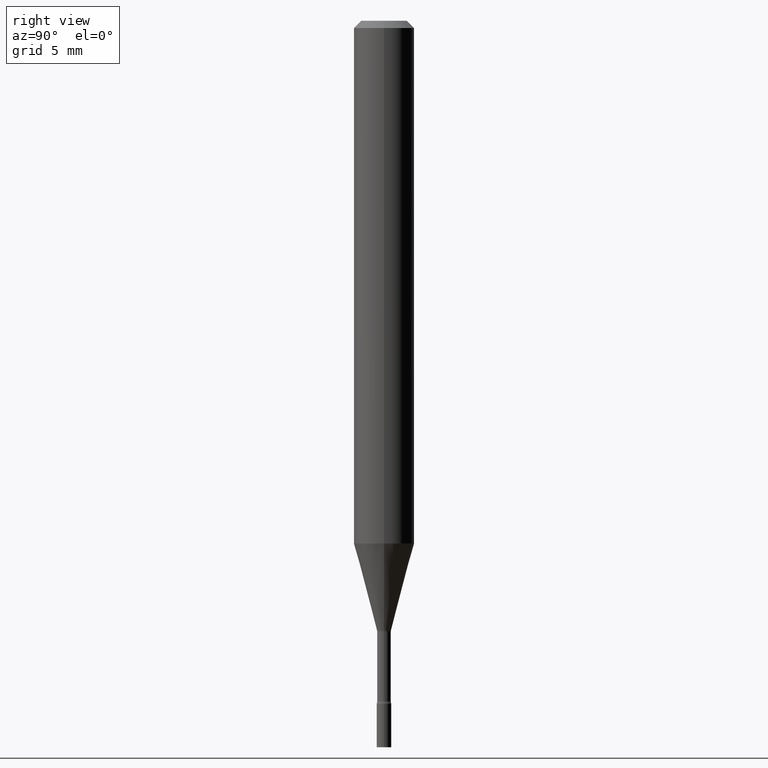
[diagram: clean part render]
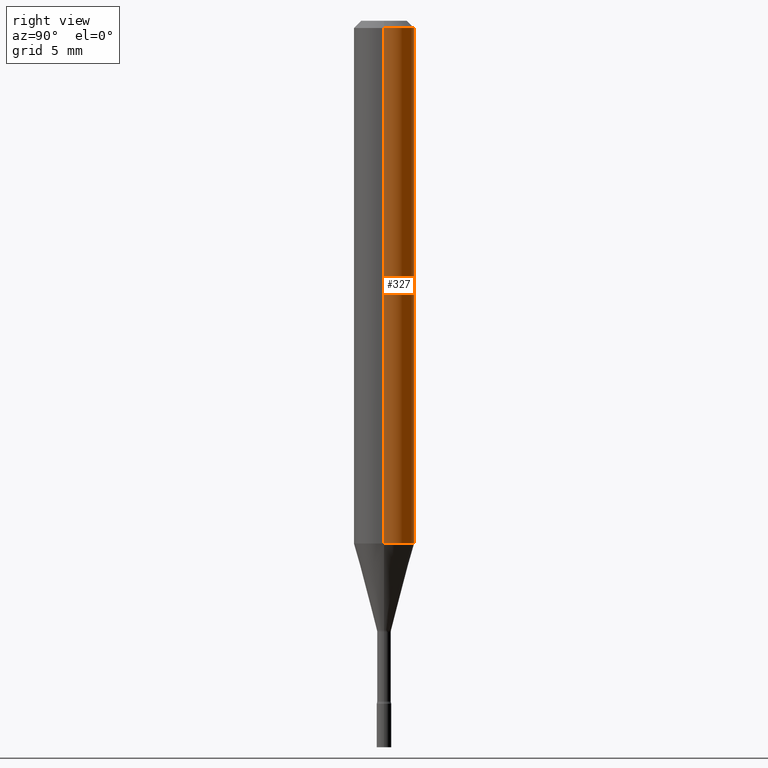
[diagram: same view with one face highlighted and labeled with its STEP entity id]
A machine part, right view. The second image highlights one B-rep face of the part: STEP entity #327.
In plain terms, the highlighted cylindrical surface (edge-blend (fillet) strip) has radius 1.5875 mm, axis along (-0, 0, 1).
Its self-contained STEP definition (entity closure, byte-faithful):
#7 = AXIS2_PLACEMENT_3D ( 'NONE', #433, #67, #205 ) ;
#17 = CYLINDRICAL_SURFACE ( 'NONE', #475, 0.06250000000000000000 ) ;
#25 = AXIS2_PLACEMENT_3D ( 'NONE', #202, #165, #516 ) ;
#67 = DIRECTION ( 'NONE',  ( -2.445468806185136597E-29, 3.491481338843145583E-15, 1.000000000000000000 ) ) ;
#70 = LINE ( 'NONE', #361, #449 ) ;
#78 = VERTEX_POINT ( 'NONE', #220 ) ;
#98 = EDGE_LOOP ( 'NONE', ( #228, #229, #186, #103 ) ) ;
#103 = ORIENTED_EDGE ( 'NONE', *, *, #490, .F. ) ;
#134 = CARTESIAN_POINT ( 'NONE',  ( -0.06250000000000000000, 4.440892098500626162E-16, -3.074334431409316114E-30 ) ) ;
#140 = DIRECTION ( 'NONE',  ( 1.000000000000000000, -6.982962677686266711E-15, 4.876176775795935793E-29 ) ) ;
#156 = DIRECTION ( 'NONE',  ( -2.445468806185136877E-29, 3.491481338843145188E-15, 1.000000000000000000 ) ) ;
#157 = CARTESIAN_POINT ( 'NONE',  ( 0.06250000000000001388, -4.205030983986081256E-15, -1.079368740913666747 ) ) ;
#165 = DIRECTION ( 'NONE',  ( -2.445468806185136597E-29, 3.491481338843145583E-15, 1.000000000000000000 ) ) ;
#171 = EDGE_CURVE ( 'NONE', #506, #515, #293, .T. ) ;
#186 = ORIENTED_EDGE ( 'NONE', *, *, #485, .F. ) ;
#202 = CARTESIAN_POINT ( 'NONE',  ( 2.639562586275698746E-29, -3.768595816630689586E-15, -1.079368740913666747 ) ) ;
#205 = DIRECTION ( 'NONE',  ( 1.000000000000000000, -6.982962677686266711E-15, 0.000000000000000000 ) ) ;
#220 = CARTESIAN_POINT ( 'NONE',  ( 0.06250000000000000000, -4.888073874380389458E-16, -0.01500000000000003067 ) ) ;
#228 = ORIENTED_EDGE ( 'NONE', *, *, #440, .T. ) ;
#229 = ORIENTED_EDGE ( 'NONE', *, *, #171, .T. ) ;
#230 = FACE_OUTER_BOUND ( 'NONE', #98, .T. ) ;
#233 = CIRCLE ( 'NONE', #25, 0.06250000000000000000 ) ;
#237 = DIRECTION ( 'NONE',  ( -2.445468806185136597E-29, 3.491481338843145583E-15, 1.000000000000000000 ) ) ;
#241 = CARTESIAN_POINT ( 'NONE',  ( -0.06250000000000000000, -1.466394808506605914E-15, -0.01500000000000003067 ) ) ;
#293 = LINE ( 'NONE', #134, #331 ) ;
#314 = CARTESIAN_POINT ( 'NONE',  ( -0.06250000000000001388, -3.324506606780626970E-15, -1.079368740913666747 ) ) ;
#327 = ADVANCED_FACE ( 'NONE', ( #230 ), #17, .T. ) ;
#331 = VECTOR ( 'NONE', #421, 39.37007874015748143 ) ;
#353 = CARTESIAN_POINT ( 'NONE',  ( 0.000000000000000000, 0.000000000000000000, 0.000000000000000000 ) ) ;
#361 = CARTESIAN_POINT ( 'NONE',  ( 0.06250000000000000000, -4.364351673553916694E-16, 3.047610484872459871E-30 ) ) ;
#378 = CIRCLE ( 'NONE', #7, 0.06250000000000000000 ) ;
#421 = DIRECTION ( 'NONE',  ( -2.445468806185136877E-29, 3.491481338843145188E-15, 1.000000000000000000 ) ) ;
#433 = CARTESIAN_POINT ( 'NONE',  ( 3.668203209277712094E-31, -5.237222008264728876E-17, -0.01500000000000003067 ) ) ;
#440 = EDGE_CURVE ( 'NONE', #465, #506, #233, .T. ) ;
#449 = VECTOR ( 'NONE', #156, 39.37007874015748143 ) ;
#465 = VERTEX_POINT ( 'NONE', #157 ) ;
#475 = AXIS2_PLACEMENT_3D ( 'NONE', #353, #237, #140 ) ;
#485 = EDGE_CURVE ( 'NONE', #78, #515, #378, .T. ) ;
#490 = EDGE_CURVE ( 'NONE', #465, #78, #70, .T. ) ;
#506 = VERTEX_POINT ( 'NONE', #314 ) ;
#515 = VERTEX_POINT ( 'NONE', #241 ) ;
#516 = DIRECTION ( 'NONE',  ( 1.000000000000000000, -6.982962677686262766E-15, 0.000000000000000000 ) ) ;